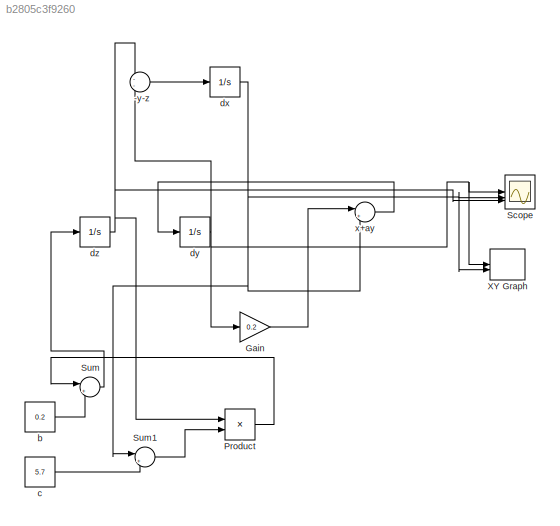
MODEL slx_b2805c3f9260
KIND model
CONFIG AbsTol = auto
CONFIG EnableMultiTasking = off
CONFIG FixedStep = auto
CONFIG MaxStep = auto
CONFIG MinStep = auto
CONFIG RelTol = 1e-3
CONFIG SampleTimeConstraint = Unconstrained
CONFIG SolverName = VariableStepAuto
CONFIG StartTime = 0.0
CONFIG StopTime = 100.0
BLOCK [Sum] -y-z
  Inputs = --
BLOCK [Gain] Gain
  Gain = 0.2
BLOCK [Product] Product
BLOCK [Scope] Scope
  Floating = off
  NumInputPorts = 3
  ScopeSpecificationString = Simulink.scopes.TimeScopeBlockCfg('CurrentConfiguration', extmgr.ConfigurationSet(extmgr.Configuration('Core','General UI',true),extmgr.Configuration('Core','Source UI',true),extmgr.Configuration('Sources','WiredSimulink',true,'SampleTime','0.01','DataLogging',true),extmgr.Configuration('Visuals','Time Domain',true,'InputProcessing','FrameProcessing','SerializedDisplays',{struct('MinYLimReal','-14...<+1611ch>
BLOCK [Sum] Sum
  Inputs = |++
BLOCK [Sum] Sum1
  Inputs = |+-
BLOCK [Record] XY Graph
  CompatibilityTag = XY
  FileSettingsInternal = {"entries":[{"content":{"excelSettings":{"content":{},"type":"Streamout.ExcelSettings"}},"type":"Streamout.FileSettingStorage","uuid":""}],"packageUris":["http:\/\/schema.mathworks.com\/mf0\/streamout_blocks\/R2020a"],"version":"1.0"}
  Filename = <userpath>\Desktop\test.mldatx
  Layout = [1 1]
  RecordToFile = on
  RecordToWorkspace = on
  SignalsInternal = {"entries":[{"content":{"signals":[{"content":{"blockPath":[],"dimensions":[1],"domain":"","lineColor":"#a2142f","plots":[ 1 ],"port":1,"sid":[""],"signalID":1,"signalName":"dy"},"type":"RecordBlkView.Signal","uuid":""},{"content":{"blockPath":[],"dimensions":[1],"domain":"","lineColor":"#139fff","plots":[ 1 ],"port":2,"sid":[""],"signalID":2,"signalName":"dx"},"type":"RecordBlkView.Signal","uuid"...<+150ch>
  VariableName = recordXY
BLOCK [Constant] b
  Value = 0.2
BLOCK [Constant] c
  Value = 5.7
BLOCK [Integrator] dx
BLOCK [Integrator] dy
BLOCK [Integrator] dz
BLOCK [Sum] x+ay
  Inputs = |++
LINE -y-z:1 -> dx:1
LINE Gain:1 -> x+ay:1
LINE Product:1 -> Sum:1
LINE Sum1:1 -> Product:2
LINE Sum:1 -> dz:1
LINE b:1 -> Sum:2
LINE c:1 -> Sum1:2
NET dx:1 -> Scope:2, Sum1:1, XY Graph:2, x+ay:2
NET dy:1 -> -y-z:2, Gain:1, Scope:1, XY Graph:1
NET dz:1 -> -y-z:1, Product:1, Scope:3
LINE x+ay:1 -> dy:1
note: NET lines group one-source signal fan-out (src -> all destinations, sorted); 1:1 wires keep LINE
